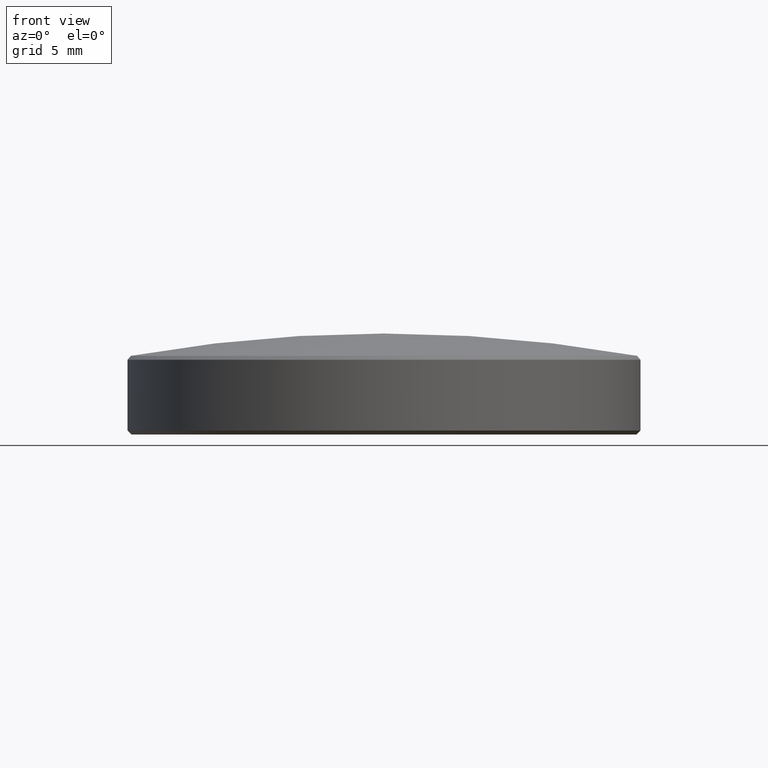
[diagram: clean part render]
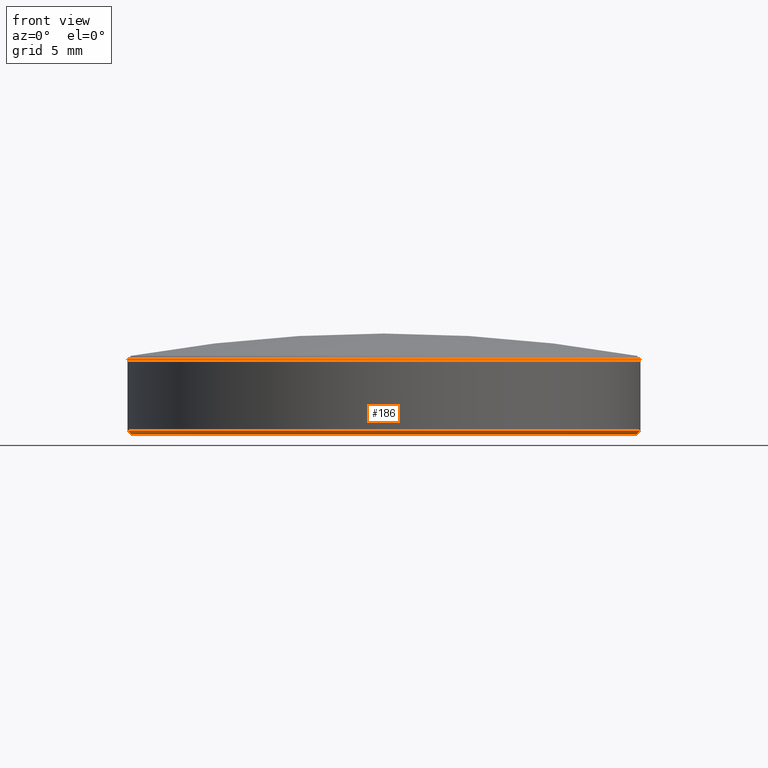
[diagram: same view with one face highlighted and labeled with its STEP entity id]
A machine part, front view. The second image highlights one B-rep face of the part: STEP entity #186.
In plain terms, the highlighted conical surface has half-angle 45 deg.
Its self-contained STEP definition (entity closure, byte-faithful):
#8 = DIRECTION ( 'NONE',  ( -0.000000000000000000, -0.000000000000000000, 1.000000000000000000 ) ) ;
#16 = EDGE_CURVE ( 'NONE', #231, #203, #152, .T. ) ;
#24 = DIRECTION ( 'NONE',  ( -0.000000000000000000, -0.000000000000000000, -1.000000000000000000 ) ) ;
#27 = EDGE_CURVE ( 'NONE', #231, #233, #219, .T. ) ;
#32 = FACE_OUTER_BOUND ( 'NONE', #131, .T. ) ;
#43 = ORIENTED_EDGE ( 'NONE', *, *, #148, .F. ) ;
#44 = LINE ( 'NONE', #251, #53 ) ;
#47 = CARTESIAN_POINT ( 'NONE',  ( 12.50000000000000178, 0.000000000000000000, 0.000000000000000000 ) ) ;
#53 = VECTOR ( 'NONE', #67, 1000.000000000000000 ) ;
#54 = VERTEX_POINT ( 'NONE', #171 ) ;
#65 = CARTESIAN_POINT ( 'NONE',  ( 12.69999999999999929, 0.000000000000000000, 0.1999999999999987899 ) ) ;
#66 = VECTOR ( 'NONE', #174, 1000.000000000000000 ) ;
#67 = DIRECTION ( 'NONE',  ( -0.7071067811865444641, 8.659560562354895880E-17, 0.7071067811865505703 ) ) ;
#71 = AXIS2_PLACEMENT_3D ( 'NONE', #139, #8, #216 ) ;
#82 = EDGE_CURVE ( 'NONE', #233, #54, #44, .T. ) ;
#100 = CONICAL_SURFACE ( 'NONE', #105, 12.69999999999999929, 0.7853981633974439491 ) ;
#105 = AXIS2_PLACEMENT_3D ( 'NONE', #179, #195, #218 ) ;
#115 = DIRECTION ( 'NONE',  ( 1.000000000000000000, 0.000000000000000000, 0.000000000000000000 ) ) ;
#131 = EDGE_LOOP ( 'NONE', ( #172, #136, #262, #43 ) ) ;
#136 = ORIENTED_EDGE ( 'NONE', *, *, #27, .F. ) ;
#139 = CARTESIAN_POINT ( 'NONE',  ( 0.000000000000000000, 0.000000000000000000, 0.1999999999999987899 ) ) ;
#148 = EDGE_CURVE ( 'NONE', #54, #203, #246, .T. ) ;
#152 = LINE ( 'NONE', #65, #66 ) ;
#158 = CARTESIAN_POINT ( 'NONE',  ( 0.000000000000000000, 0.000000000000000000, 0.000000000000000000 ) ) ;
#165 = CARTESIAN_POINT ( 'NONE',  ( -12.50000000000000178, 1.543054966925665273E-15, 0.000000000000000000 ) ) ;
#171 = CARTESIAN_POINT ( 'NONE',  ( -12.69999999999999929, 0.000000000000000000, 0.1999999999999987899 ) ) ;
#172 = ORIENTED_EDGE ( 'NONE', *, *, #82, .F. ) ;
#174 = DIRECTION ( 'NONE',  ( 0.7071067811865444641, 0.000000000000000000, 0.7071067811865505703 ) ) ;
#179 = CARTESIAN_POINT ( 'NONE',  ( 0.000000000000000000, 0.000000000000000000, 0.1999999999999987899 ) ) ;
#186 = ADVANCED_FACE ( 'NONE', ( #32 ), #100, .T. ) ;
#195 = DIRECTION ( 'NONE',  ( -0.000000000000000000, -0.000000000000000000, 1.000000000000000000 ) ) ;
#198 = AXIS2_PLACEMENT_3D ( 'NONE', #158, #24, #115 ) ;
#203 = VERTEX_POINT ( 'NONE', #239 ) ;
#216 = DIRECTION ( 'NONE',  ( 1.000000000000000000, 0.000000000000000000, 0.000000000000000000 ) ) ;
#218 = DIRECTION ( 'NONE',  ( 1.000000000000000000, 0.000000000000000000, 0.000000000000000000 ) ) ;
#219 = CIRCLE ( 'NONE', #198, 12.50000000000000178 ) ;
#231 = VERTEX_POINT ( 'NONE', #47 ) ;
#233 = VERTEX_POINT ( 'NONE', #165 ) ;
#239 = CARTESIAN_POINT ( 'NONE',  ( 12.69999999999999929, 1.555301434917138433E-15, 0.1999999999999987899 ) ) ;
#246 = CIRCLE ( 'NONE', #71, 12.69999999999999929 ) ;
#251 = CARTESIAN_POINT ( 'NONE',  ( -12.69999999999999929, 1.555301434917138433E-15, 0.1999999999999987899 ) ) ;
#262 = ORIENTED_EDGE ( 'NONE', *, *, #16, .T. ) ;